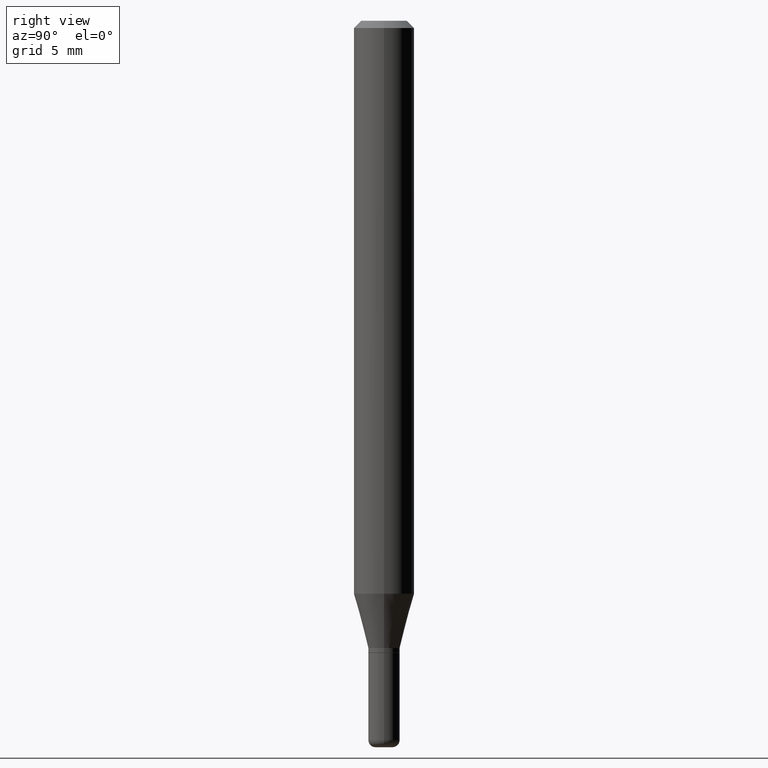
[diagram: clean part render]
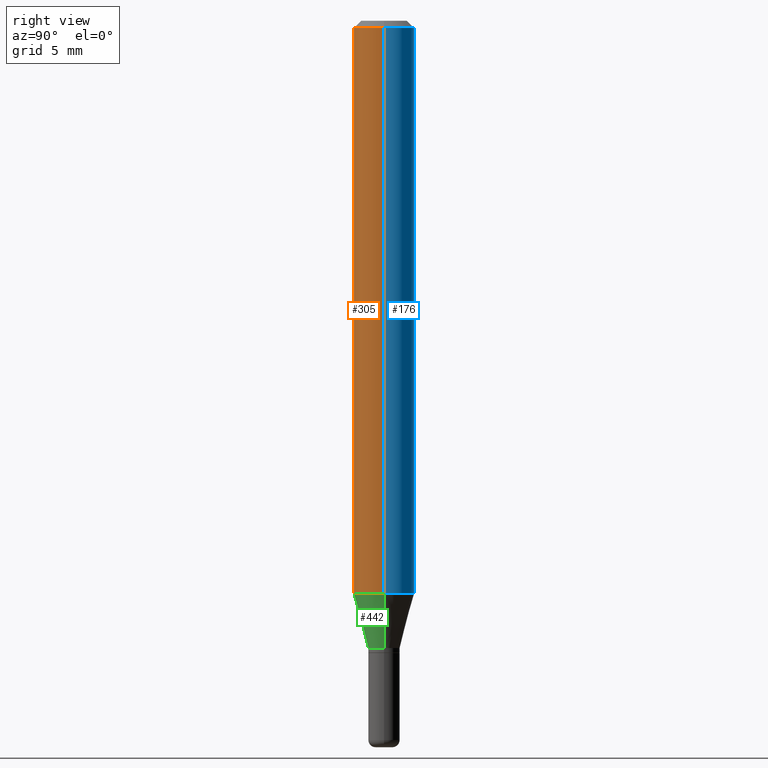
[diagram: same view with three faces highlighted in distinct colors, each labeled with its STEP entity id]
A machine part, right view with three faces highlighted in distinct colors.
Their STEP definitions:

[orange] entity #305 — the highlighted cylindrical surface (edge-blend (fillet) strip) has radius 1.5875 mm, axis along (-0, 0, 1).
#5 = CIRCLE ( 'NONE', #326, 0.06250000000000000000 ) ;
#28 = DIRECTION ( 'NONE',  ( -2.445468806185136877E-29, 3.491481338843145188E-15, 1.000000000000000000 ) ) ;
#34 = DIRECTION ( 'NONE',  ( -2.445468806185136877E-29, 3.491481338843145188E-15, 1.000000000000000000 ) ) ;
#35 = VERTEX_POINT ( 'NONE', #461 ) ;
#54 = CARTESIAN_POINT ( 'NONE',  ( 0.06250000000000000000, -4.566991928650029563E-15, -1.183038475772933751 ) ) ;
#55 = EDGE_CURVE ( 'NONE', #82, #463, #199, .T. ) ;
#76 = CARTESIAN_POINT ( 'NONE',  ( 0.000000000000000000, 0.000000000000000000, 0.000000000000000000 ) ) ;
#82 = VERTEX_POINT ( 'NONE', #197 ) ;
#90 = EDGE_CURVE ( 'NONE', #463, #443, #137, .T. ) ;
#96 = AXIS2_PLACEMENT_3D ( 'NONE', #143, #384, #344 ) ;
#98 = ORIENTED_EDGE ( 'NONE', *, *, #367, .F. ) ;
#99 = ORIENTED_EDGE ( 'NONE', *, *, #90, .T. ) ;
#101 = DIRECTION ( 'NONE',  ( 1.000000000000000000, -6.982962677686266711E-15, 4.876176775795935793E-29 ) ) ;
#137 = LINE ( 'NONE', #499, #440 ) ;
#142 = VECTOR ( 'NONE', #34, 39.37007874015748143 ) ;
#143 = CARTESIAN_POINT ( 'NONE',  ( 2.893083689019520084E-29, -4.130556761294637105E-15, -1.183038475772933751 ) ) ;
#145 = DIRECTION ( 'NONE',  ( -2.445468806185136597E-29, 3.491481338843145583E-15, 1.000000000000000000 ) ) ;
#160 = DIRECTION ( 'NONE',  ( 1.000000000000000000, -6.982962677686266711E-15, 0.000000000000000000 ) ) ;
#197 = CARTESIAN_POINT ( 'NONE',  ( -0.06250000000000000000, -3.686467551444575277E-15, -1.183038475772933751 ) ) ;
#198 = ORIENTED_EDGE ( 'NONE', *, *, #449, .F. ) ;
#199 = CIRCLE ( 'NONE', #96, 0.06250000000000000000 ) ;
#202 = LINE ( 'NONE', #509, #142 ) ;
#270 = CARTESIAN_POINT ( 'NONE',  ( 3.668203209277632395E-31, -5.237222008264614861E-17, -0.01499999999999970281 ) ) ;
#305 = ADVANCED_FACE ( 'NONE', ( #353 ), #352, .T. ) ;
#326 = AXIS2_PLACEMENT_3D ( 'NONE', #270, #145, #160 ) ;
#344 = DIRECTION ( 'NONE',  ( 1.000000000000000000, -6.982962677686262766E-15, 0.000000000000000000 ) ) ;
#349 = AXIS2_PLACEMENT_3D ( 'NONE', #76, #430, #101 ) ;
#352 = CYLINDRICAL_SURFACE ( 'NONE', #349, 0.06250000000000000000 ) ;
#353 = FACE_OUTER_BOUND ( 'NONE', #436, .T. ) ;
#367 = EDGE_CURVE ( 'NONE', #35, #443, #5, .T. ) ;
#384 = DIRECTION ( 'NONE',  ( -2.445468806185136597E-29, 3.491481338843145583E-15, 1.000000000000000000 ) ) ;
#390 = CARTESIAN_POINT ( 'NONE',  ( 0.06250000000000000000, -4.888073874380378612E-16, -0.01499999999999970281 ) ) ;
#421 = ORIENTED_EDGE ( 'NONE', *, *, #55, .T. ) ;
#430 = DIRECTION ( 'NONE',  ( -2.445468806185136597E-29, 3.491481338843145583E-15, 1.000000000000000000 ) ) ;
#436 = EDGE_LOOP ( 'NONE', ( #198, #421, #99, #98 ) ) ;
#440 = VECTOR ( 'NONE', #28, 39.37007874015748143 ) ;
#443 = VERTEX_POINT ( 'NONE', #390 ) ;
#449 = EDGE_CURVE ( 'NONE', #82, #35, #202, .T. ) ;
#461 = CARTESIAN_POINT ( 'NONE',  ( -0.06250000000000000000, -1.647375280838578884E-15, -0.01499999999999970281 ) ) ;
#463 = VERTEX_POINT ( 'NONE', #54 ) ;
#499 = CARTESIAN_POINT ( 'NONE',  ( 0.06250000000000000000, -4.364351673553916694E-16, 3.047610484872459871E-30 ) ) ;
#509 = CARTESIAN_POINT ( 'NONE',  ( -0.06250000000000000000, 4.440892098500626162E-16, -3.074334431409316114E-30 ) ) ;

[blue] entity #176 — the highlighted cylindrical surface (edge-blend (fillet) strip) has radius 1.5875 mm, axis along (-0, 0, 1).
#4 = CARTESIAN_POINT ( 'NONE',  ( 2.893083689019520084E-29, -4.130556761294637105E-15, -1.183038475772933751 ) ) ;
#15 = DIRECTION ( 'NONE',  ( 1.000000000000000000, -6.982962677686266711E-15, 0.000000000000000000 ) ) ;
#23 = AXIS2_PLACEMENT_3D ( 'NONE', #4, #503, #116 ) ;
#28 = DIRECTION ( 'NONE',  ( -2.445468806185136877E-29, 3.491481338843145188E-15, 1.000000000000000000 ) ) ;
#34 = DIRECTION ( 'NONE',  ( -2.445468806185136877E-29, 3.491481338843145188E-15, 1.000000000000000000 ) ) ;
#35 = VERTEX_POINT ( 'NONE', #461 ) ;
#54 = CARTESIAN_POINT ( 'NONE',  ( 0.06250000000000000000, -4.566991928650029563E-15, -1.183038475772933751 ) ) ;
#82 = VERTEX_POINT ( 'NONE', #197 ) ;
#90 = EDGE_CURVE ( 'NONE', #463, #443, #137, .T. ) ;
#102 = ORIENTED_EDGE ( 'NONE', *, *, #125, .F. ) ;
#116 = DIRECTION ( 'NONE',  ( 1.000000000000000000, -6.982962677686262766E-15, 0.000000000000000000 ) ) ;
#118 = CYLINDRICAL_SURFACE ( 'NONE', #370, 0.06250000000000000000 ) ;
#125 = EDGE_CURVE ( 'NONE', #443, #35, #450, .T. ) ;
#137 = LINE ( 'NONE', #499, #440 ) ;
#142 = VECTOR ( 'NONE', #34, 39.37007874015748143 ) ;
#176 = ADVANCED_FACE ( 'NONE', ( #269 ), #118, .T. ) ;
#183 = ORIENTED_EDGE ( 'NONE', *, *, #245, .T. ) ;
#197 = CARTESIAN_POINT ( 'NONE',  ( -0.06250000000000000000, -3.686467551444575277E-15, -1.183038475772933751 ) ) ;
#202 = LINE ( 'NONE', #509, #142 ) ;
#232 = DIRECTION ( 'NONE',  ( -2.445468806185136597E-29, 3.491481338843145583E-15, 1.000000000000000000 ) ) ;
#245 = EDGE_CURVE ( 'NONE', #463, #82, #331, .T. ) ;
#262 = CARTESIAN_POINT ( 'NONE',  ( 3.668203209277632395E-31, -5.237222008264614861E-17, -0.01499999999999970281 ) ) ;
#269 = FACE_OUTER_BOUND ( 'NONE', #409, .T. ) ;
#290 = DIRECTION ( 'NONE',  ( 1.000000000000000000, -6.982962677686266711E-15, 4.876176775795935793E-29 ) ) ;
#328 = ORIENTED_EDGE ( 'NONE', *, *, #449, .T. ) ;
#331 = CIRCLE ( 'NONE', #23, 0.06250000000000000000 ) ;
#370 = AXIS2_PLACEMENT_3D ( 'NONE', #517, #474, #290 ) ;
#390 = CARTESIAN_POINT ( 'NONE',  ( 0.06250000000000000000, -4.888073874380378612E-16, -0.01499999999999970281 ) ) ;
#399 = AXIS2_PLACEMENT_3D ( 'NONE', #262, #232, #15 ) ;
#409 = EDGE_LOOP ( 'NONE', ( #183, #328, #102, #512 ) ) ;
#440 = VECTOR ( 'NONE', #28, 39.37007874015748143 ) ;
#443 = VERTEX_POINT ( 'NONE', #390 ) ;
#449 = EDGE_CURVE ( 'NONE', #82, #35, #202, .T. ) ;
#450 = CIRCLE ( 'NONE', #399, 0.06250000000000000000 ) ;
#461 = CARTESIAN_POINT ( 'NONE',  ( -0.06250000000000000000, -1.647375280838578884E-15, -0.01499999999999970281 ) ) ;
#463 = VERTEX_POINT ( 'NONE', #54 ) ;
#474 = DIRECTION ( 'NONE',  ( -2.445468806185136597E-29, 3.491481338843145583E-15, 1.000000000000000000 ) ) ;
#499 = CARTESIAN_POINT ( 'NONE',  ( 0.06250000000000000000, -4.364351673553916694E-16, 3.047610484872459871E-30 ) ) ;
#503 = DIRECTION ( 'NONE',  ( -2.445468806185136597E-29, 3.491481338843145583E-15, 1.000000000000000000 ) ) ;
#509 = CARTESIAN_POINT ( 'NONE',  ( -0.06250000000000000000, 4.440892098500626162E-16, -3.074334431409316114E-30 ) ) ;
#512 = ORIENTED_EDGE ( 'NONE', *, *, #90, .F. ) ;
#517 = CARTESIAN_POINT ( 'NONE',  ( 0.000000000000000000, 0.000000000000000000, 0.000000000000000000 ) ) ;

[green] entity #442 — the highlighted conical surface has half-angle 15 deg.
#10 = EDGE_LOOP ( 'NONE', ( #393, #253, #454, #400 ) ) ;
#30 = DIRECTION ( 'NONE',  ( 1.000000000000000000, -6.982962677686262766E-15, 0.000000000000000000 ) ) ;
#54 = CARTESIAN_POINT ( 'NONE',  ( 0.06250000000000000000, -4.566991928650029563E-15, -1.183038475772933751 ) ) ;
#55 = EDGE_CURVE ( 'NONE', #82, #463, #199, .T. ) ;
#57 = CARTESIAN_POINT ( 'NONE',  ( -0.03249999999999998029, -3.988504748062208899E-15, -1.295000000000000151 ) ) ;
#72 = FACE_OUTER_BOUND ( 'NONE', #10, .T. ) ;
#82 = VERTEX_POINT ( 'NONE', #197 ) ;
#88 = VECTOR ( 'NONE', #114, 39.37007874015748854 ) ;
#96 = AXIS2_PLACEMENT_3D ( 'NONE', #143, #384, #344 ) ;
#109 = DIRECTION ( 'NONE',  ( -2.445468806185136597E-29, 3.491481338843145583E-15, 1.000000000000000000 ) ) ;
#110 = CARTESIAN_POINT ( 'NONE',  ( 0.03249999999999998029, -4.748414620826678245E-15, -1.295000000000000151 ) ) ;
#114 = DIRECTION ( 'NONE',  ( -0.2588190451025206285, 5.211531920934544731E-15, 0.9659258262890682012 ) ) ;
#143 = CARTESIAN_POINT ( 'NONE',  ( 2.893083689019520084E-29, -4.130556761294637105E-15, -1.183038475772933751 ) ) ;
#156 = CARTESIAN_POINT ( 'NONE',  ( 3.166882104009752139E-29, -4.521468333801874892E-15, -1.295000000000000151 ) ) ;
#159 = CIRCLE ( 'NONE', #513, 0.03249999999999998029 ) ;
#197 = CARTESIAN_POINT ( 'NONE',  ( -0.06250000000000000000, -3.686467551444575277E-15, -1.183038475772933751 ) ) ;
#199 = CIRCLE ( 'NONE', #96, 0.06250000000000000000 ) ;
#207 = LINE ( 'NONE', #250, #88 ) ;
#215 = AXIS2_PLACEMENT_3D ( 'NONE', #235, #386, #392 ) ;
#235 = CARTESIAN_POINT ( 'NONE',  ( 3.166882104009752139E-29, -4.521468333801874892E-15, -1.295000000000000151 ) ) ;
#250 = CARTESIAN_POINT ( 'NONE',  ( -0.03249999999999998029, -4.290541944679842521E-15, -1.295000000000000151 ) ) ;
#253 = ORIENTED_EDGE ( 'NONE', *, *, #363, .T. ) ;
#278 = DIRECTION ( 'NONE',  ( 0.2588190451025206285, 1.565188264969627095E-15, 0.9659258262890682012 ) ) ;
#294 = VECTOR ( 'NONE', #278, 39.37007874015748854 ) ;
#344 = DIRECTION ( 'NONE',  ( 1.000000000000000000, -6.982962677686262766E-15, 0.000000000000000000 ) ) ;
#363 = EDGE_CURVE ( 'NONE', #387, #364, #159, .T. ) ;
#364 = VERTEX_POINT ( 'NONE', #435 ) ;
#368 = EDGE_CURVE ( 'NONE', #364, #463, #456, .T. ) ;
#384 = DIRECTION ( 'NONE',  ( -2.445468806185136597E-29, 3.491481338843145583E-15, 1.000000000000000000 ) ) ;
#386 = DIRECTION ( 'NONE',  ( -2.445468806185136597E-29, 3.491481338843145583E-15, 1.000000000000000000 ) ) ;
#387 = VERTEX_POINT ( 'NONE', #57 ) ;
#392 = DIRECTION ( 'NONE',  ( 1.000000000000000000, -6.982962677686262766E-15, 0.000000000000000000 ) ) ;
#393 = ORIENTED_EDGE ( 'NONE', *, *, #469, .F. ) ;
#400 = ORIENTED_EDGE ( 'NONE', *, *, #55, .F. ) ;
#432 = CONICAL_SURFACE ( 'NONE', #215, 0.03249999999999998029, 0.2617993877991493523 ) ;
#435 = CARTESIAN_POINT ( 'NONE',  ( 0.03249999999999998029, -4.748414620826678245E-15, -1.295000000000000151 ) ) ;
#442 = ADVANCED_FACE ( 'NONE', ( #72 ), #432, .T. ) ;
#454 = ORIENTED_EDGE ( 'NONE', *, *, #368, .T. ) ;
#456 = LINE ( 'NONE', #110, #294 ) ;
#463 = VERTEX_POINT ( 'NONE', #54 ) ;
#469 = EDGE_CURVE ( 'NONE', #387, #82, #207, .T. ) ;
#513 = AXIS2_PLACEMENT_3D ( 'NONE', #156, #109, #30 ) ;